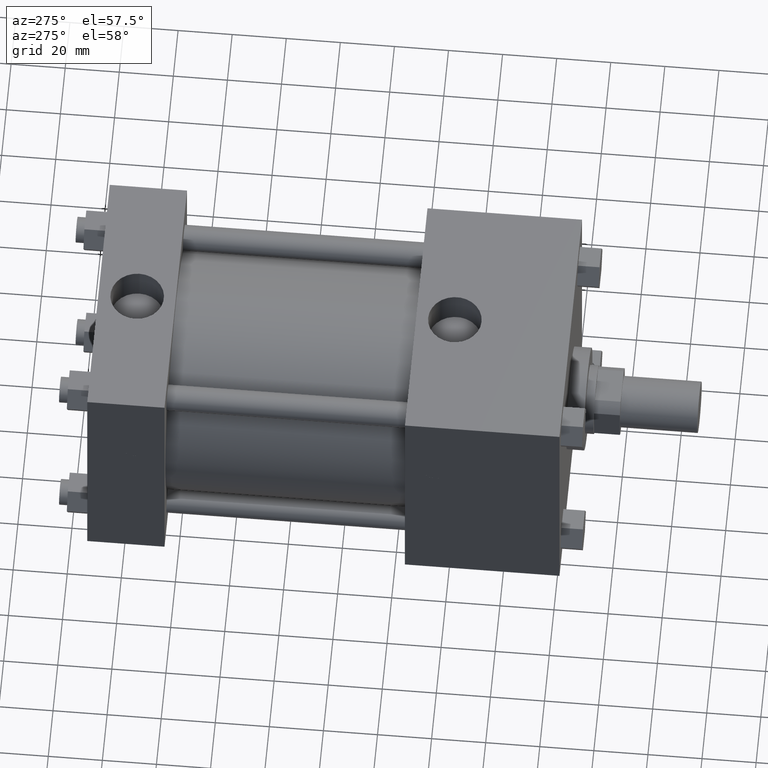
[diagram: clean part render]
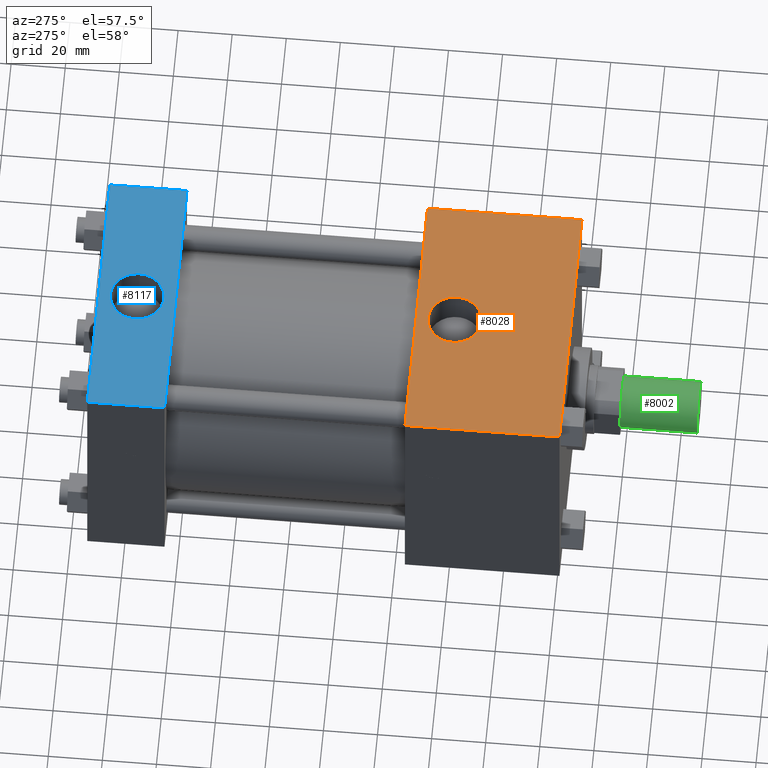
[diagram: same view with three faces highlighted in distinct colors, each labeled with its STEP entity id]
A machine part, auxiliary view with three faces highlighted in distinct colors.
Their STEP definitions:

[orange] entity #8028 — the highlighted planar face has unit normal (0, 0, 1).
#1811=EDGE_CURVE('',#1817,#1817,#1812,.T.);
#1812=CIRCLE('',#1813,9.885680000E+000);
#1813=AXIS2_PLACEMENT_3D('',#1814,#1815,#1816);
#1814=CARTESIAN_POINT('',(0.000000000E+000,6.191250000E+001,4.762500000E+001));
#1815=DIRECTION('',(0.0E+000,0.0E+000,-1.0E+000));
#1816=DIRECTION('',(0.0E+000,-1.0E+000,0.0E+000));
#1817=VERTEX_POINT('',#1818);
#1818=CARTESIAN_POINT('',(0.000000000E+000,5.202682000E+001,4.762500000E+001));
#1916=VERTEX_POINT('',#1918);
#1918=CARTESIAN_POINT('',(-4.762500000E+001,1.905000000E+001,4.762500000E+001));
#1920=EDGE_CURVE('',#1925,#1916,#1921,.T.);
#1921=LINE('',#1922,#1923);
#1922=CARTESIAN_POINT('',(-4.762500000E+001,7.620000000E+001,4.762500000E+001));
#1923=VECTOR('',#1924,1.0E+000);
#1924=DIRECTION('',(0.0E+000,-1.0E+000,0.0E+000));
#1925=VERTEX_POINT('',#1926);
#1926=CARTESIAN_POINT('',(-4.762500000E+001,7.620000000E+001,4.762500000E+001));
#1944=FACE_OUTER_BOUND('',#1946,.T.);
#1945=FACE_BOUND('',#1947,.T.);
#1946=EDGE_LOOP('',(#1948));
#1947=EDGE_LOOP('',(#1949,#1950,#1951,#1952));
#1948=ORIENTED_EDGE('',*,*,#1811,.T.);
#1949=ORIENTED_EDGE('',*,*,#1953,.F.);
#1950=ORIENTED_EDGE('',*,*,#1960,.F.);
#1951=ORIENTED_EDGE('',*,*,#1967,.T.);
#1952=ORIENTED_EDGE('',*,*,#1920,.T.);
#1953=EDGE_CURVE('',#1958,#1916,#1954,.T.);
#1954=LINE('',#1955,#1956);
#1955=CARTESIAN_POINT('',(4.762500000E+001,1.905000000E+001,4.762500000E+001));
#1956=VECTOR('',#1957,1.0E+000);
#1957=DIRECTION('',(-1.0E+000,0.0E+000,0.0E+000));
#1958=VERTEX_POINT('',#1959);
#1959=CARTESIAN_POINT('',(4.762500000E+001,1.905000000E+001,4.762500000E+001));
#1960=EDGE_CURVE('',#1965,#1958,#1961,.T.);
#1961=LINE('',#1962,#1963);
#1962=CARTESIAN_POINT('',(4.762500000E+001,7.620000000E+001,4.762500000E+001));
#1963=VECTOR('',#1964,1.0E+000);
#1964=DIRECTION('',(0.0E+000,-1.0E+000,0.0E+000));
#1965=VERTEX_POINT('',#1966);
#1966=CARTESIAN_POINT('',(4.762500000E+001,7.620000000E+001,4.762500000E+001));
#1967=EDGE_CURVE('',#1965,#1925,#1968,.T.);
#1968=LINE('',#1969,#1970);
#1969=CARTESIAN_POINT('',(4.762500000E+001,7.620000000E+001,4.762500000E+001));
#1970=VECTOR('',#1971,1.0E+000);
#1971=DIRECTION('',(-1.0E+000,0.0E+000,0.0E+000));
#1972=PLANE('',#1973);
#1973=AXIS2_PLACEMENT_3D('',#1974,#1975,#1976);
#1974=CARTESIAN_POINT('',(4.762500000E+001,7.620000000E+001,4.762500000E+001));
#1975=DIRECTION('',(0.0E+000,0.0E+000,1.0E+000));
#1976=DIRECTION('',(1.0E+000,0.0E+000,0.0E+000));
#8028=ADVANCED_FACE('',(#1944,#1945),#1972,.T.);

[blue] entity #8117 — the highlighted planar face has unit normal (0, 0, 1).
#4196=VERTEX_POINT('',#4197);
#4197=CARTESIAN_POINT('',(4.762500000E+001,1.651000000E+002,4.762500000E+001));
#4198=EDGE_CURVE('',#4196,#4203,#4199,.T.);
#4199=LINE('',#4200,#4201);
#4200=CARTESIAN_POINT('',(4.762500000E+001,1.651000000E+002,4.762500000E+001));
#4201=VECTOR('',#4202,1.0E+000);
#4202=DIRECTION('',(-1.0E+000,0.0E+000,0.0E+000));
#4203=VERTEX_POINT('',#4204);
#4204=CARTESIAN_POINT('',(-4.762500000E+001,1.651000000E+002,4.762500000E+001));
#4433=VERTEX_POINT('',#4435);
#4435=CARTESIAN_POINT('',(4.762500000E+001,1.936750000E+002,4.762500000E+001));
#4448=VERTEX_POINT('',#4449);
#4449=CARTESIAN_POINT('',(-4.762500000E+001,1.936750000E+002,4.762500000E+001));
#4450=EDGE_CURVE('',#4433,#4448,#4451,.T.);
#4451=LINE('',#4452,#4453);
#4452=CARTESIAN_POINT('',(4.762500000E+001,1.936750000E+002,4.762500000E+001));
#4453=VECTOR('',#4454,1.0E+000);
#4454=DIRECTION('',(-1.0E+000,0.0E+000,0.0E+000));
#4605=FACE_OUTER_BOUND('',#4607,.T.);
#4606=FACE_BOUND('',#4608,.T.);
#4607=EDGE_LOOP('',(#4609));
#4608=EDGE_LOOP('',(#4618,#4619,#4620,#4621));
#4609=ORIENTED_EDGE('',*,*,#4610,.T.);
#4610=EDGE_CURVE('',#4616,#4616,#4611,.T.);
#4611=CIRCLE('',#4612,9.885680000E+000);
#4612=AXIS2_PLACEMENT_3D('',#4613,#4614,#4615);
#4613=CARTESIAN_POINT('',(0.000000000E+000,1.793875000E+002,4.762500000E+001));
#4614=DIRECTION('',(0.0E+000,0.0E+000,-1.0E+000));
#4615=DIRECTION('',(-1.0E+000,0.0E+000,0.0E+000));
#4616=VERTEX_POINT('',#4617);
#4617=CARTESIAN_POINT('',(9.885680000E+000,1.793875000E+002,4.762500000E+001));
#4618=ORIENTED_EDGE('',*,*,#4622,.T.);
#4619=ORIENTED_EDGE('',*,*,#4198,.F.);
#4620=ORIENTED_EDGE('',*,*,#4627,.F.);
#4621=ORIENTED_EDGE('',*,*,#4450,.T.);
#4622=EDGE_CURVE('',#4448,#4203,#4623,.T.);
#4623=LINE('',#4624,#4625);
#4624=CARTESIAN_POINT('',(-4.762500000E+001,1.936750000E+002,4.762500000E+001));
#4625=VECTOR('',#4626,1.0E+000);
#4626=DIRECTION('',(0.0E+000,-1.0E+000,0.0E+000));
#4627=EDGE_CURVE('',#4433,#4196,#4628,.T.);
#4628=LINE('',#4629,#4630);
#4629=CARTESIAN_POINT('',(4.762500000E+001,1.936750000E+002,4.762500000E+001));
#4630=VECTOR('',#4631,1.0E+000);
#4631=DIRECTION('',(0.0E+000,-1.0E+000,0.0E+000));
#4632=PLANE('',#4633);
#4633=AXIS2_PLACEMENT_3D('',#4634,#4635,#4636);
#4634=CARTESIAN_POINT('',(4.762500000E+001,1.936750000E+002,4.762500000E+001));
#4635=DIRECTION('',(0.0E+000,0.0E+000,1.0E+000));
#4636=DIRECTION('',(1.0E+000,0.0E+000,0.0E+000));
#8117=ADVANCED_FACE('',(#4605,#4606),#4632,.T.);

[green] entity #8002 — the highlighted cylindrical surface (bore or boss wall) has radius 9.525 mm, axis along (0, 1, 0).
#91=FACE_OUTER_BOUND('',#93,.T.);
#92=FACE_BOUND('',#94,.T.);
#93=EDGE_LOOP('',(#95));
#94=EDGE_LOOP('',(#104));
#95=ORIENTED_EDGE('',*,*,#96,.T.);
#96=EDGE_CURVE('',#102,#102,#97,.T.);
#97=CIRCLE('',#98,9.525000000E+000);
#98=AXIS2_PLACEMENT_3D('',#99,#100,#101);
#99=CARTESIAN_POINT('',(0.000000000E+000,-2.857500000E+001,0.000000000E+000));
#100=DIRECTION('',(0.0E+000,1.0E+000,0.0E+000));
#101=DIRECTION('',(1.0E+000,0.0E+000,0.0E+000));
#102=VERTEX_POINT('',#103);
#103=CARTESIAN_POINT('',(9.525000000E+000,-2.857500000E+001,0.000000000E+000));
#104=ORIENTED_EDGE('',*,*,#118,.F.);
#105=CYLINDRICAL_SURFACE('',#106,9.525000000E+000);
#106=AXIS2_PLACEMENT_3D('',#107,#108,#109);
#107=CARTESIAN_POINT('',(0.000000000E+000,-2.857500000E+001,0.000000000E+000));
#108=DIRECTION('',(0.0E+000,1.0E+000,0.0E+000));
#109=DIRECTION('',(0.0E+000,0.0E+000,1.0E+000));
#118=EDGE_CURVE('',#124,#124,#119,.T.);
#119=CIRCLE('',#120,9.525000000E+000);
#120=AXIS2_PLACEMENT_3D('',#121,#122,#123);
#121=CARTESIAN_POINT('',(0.000000000E+000,0.000000000E+000,0.000000000E+000));
#122=DIRECTION('',(0.0E+000,1.0E+000,0.0E+000));
#123=DIRECTION('',(1.0E+000,0.0E+000,0.0E+000));
#124=VERTEX_POINT('',#125);
#125=CARTESIAN_POINT('',(9.525000000E+000,0.000000000E+000,0.000000000E+000));
#8002=ADVANCED_FACE('',(#91,#92),#105,.T.);